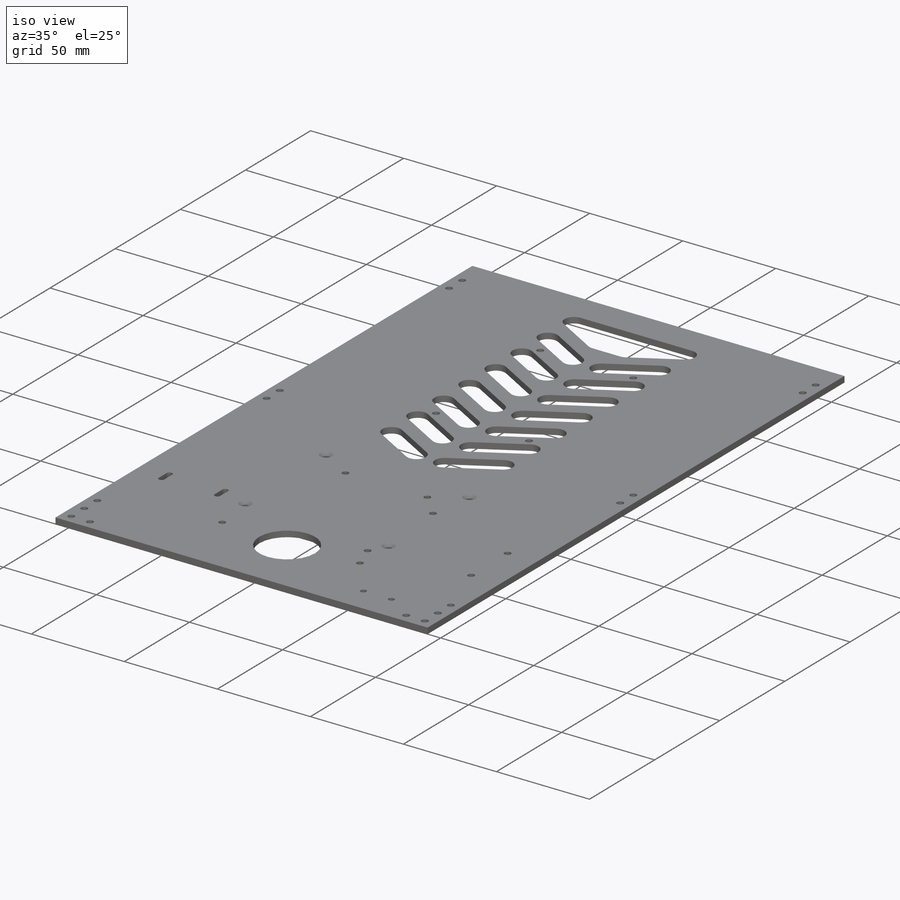
[diagram: iso view]
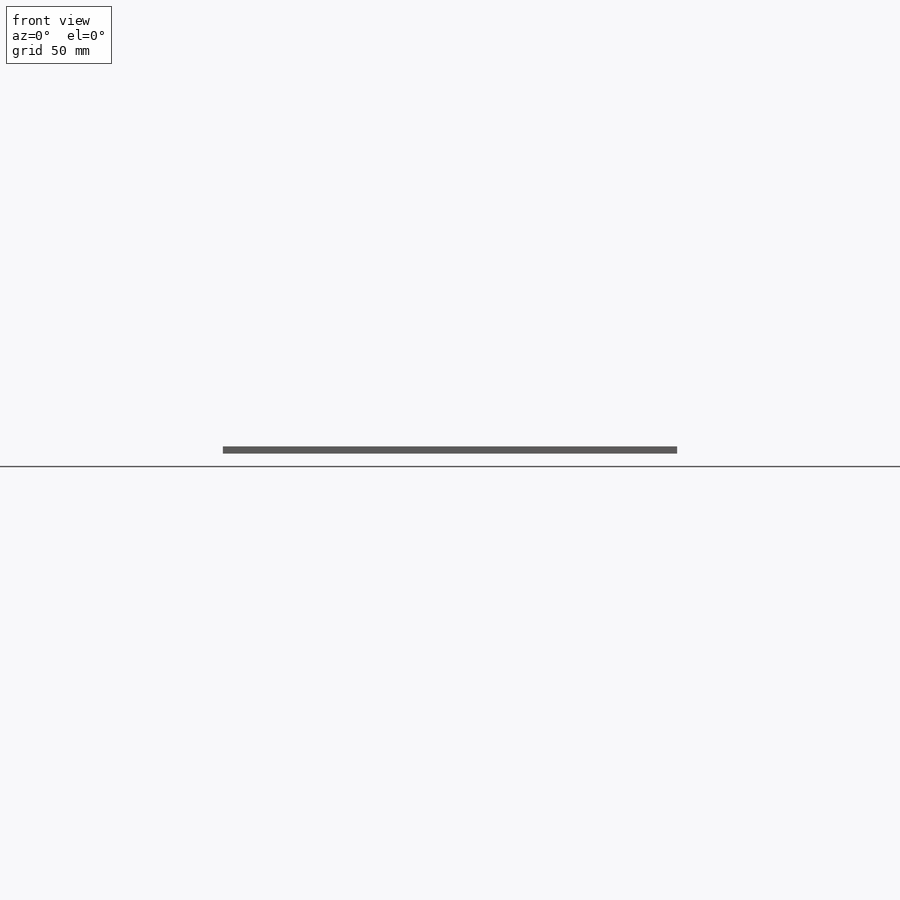
[diagram: front view]
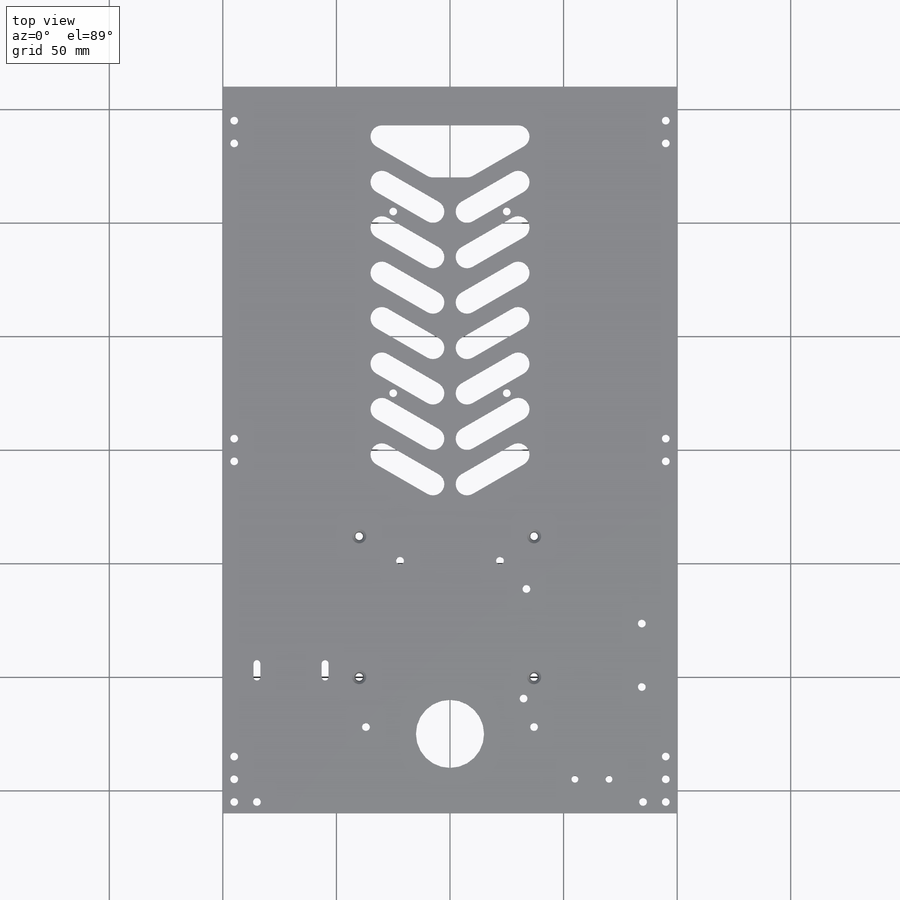
[diagram: top view]
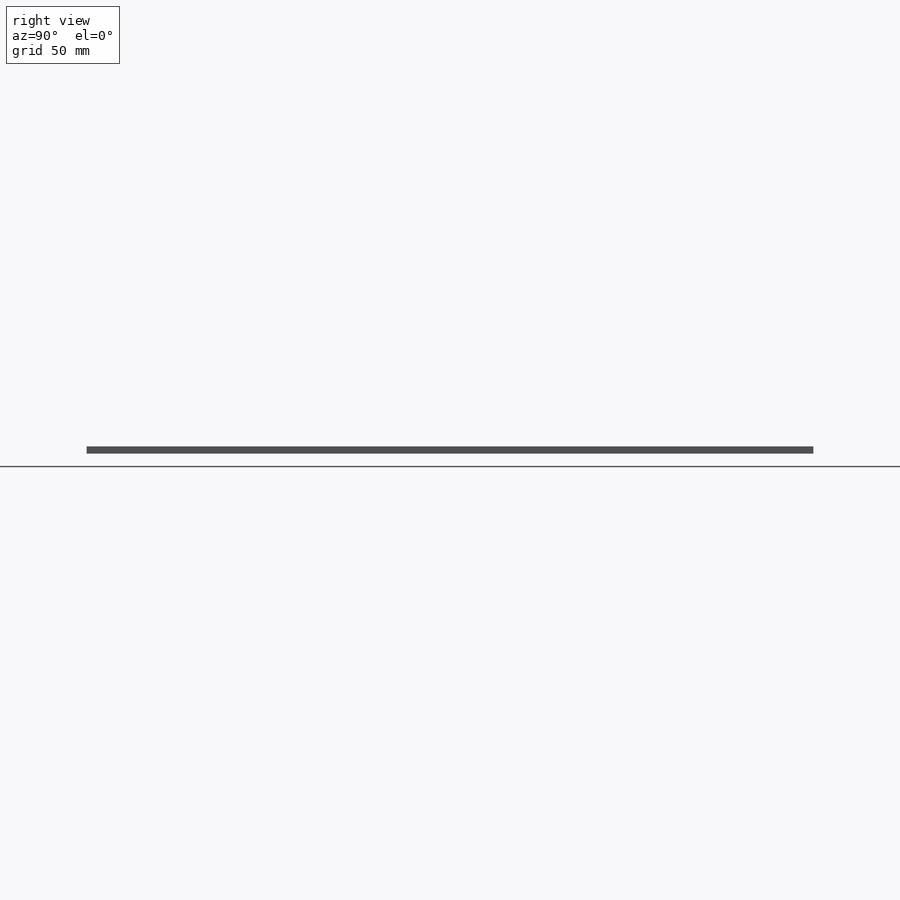
[diagram: right view]
SOLIDWORKS PART (.sldprt)
format: sldprt  version: not decoded by parser v0  size: 700,416 bytes
history: native  units: mm
features: sketch x13, hole x5, cut_extrude x2, material x1, extrude x1, mirror x1, pattern_linear x1 (+11 scaffold rows collapsed)
feature tree (35):
  scaffold x11  (default folders/planes/origin — collapsed)
  material  "Acrylic (Medium-high impact)"
  sketch  "Sketch1"  dims[D1=320.0mm D2=200.0mm]
  extrude  "Boss-Extrude1"  Depth=3.175mm
  hole  "CSK for M3 Flat Head Machine Screw1"  Diameter=3.4mm Depth=3.175mm
  sketch  "Sketch3"  dims[D1=10.0mm D2=10.0mm D3=10.0mm D4=5.0mm D5=5.0mm D6=15.0mm D7=10.0mm D8=10.0mm D9=150.0mm]
  sketch  "Sketch2"  dims[hole-wizard template sketch: 59 standard entries collapsed; hole parameters above]
  mirror  "Mirror1"
  hole  "CSK for M3 Flat Head Machine Screw2"  Diameter=3.4mm Depth=3.175mm
  sketch  "Sketch5"  dims[D1=77.0mm D2=62.0mm D3=60.0mm D4=60.0mm D5=50.0mm D6=80.0mm D7=55.0mm]
  sketch  "Sketch4"  dims[hole-wizard template sketch: 59 standard entries collapsed; hole parameters above]
  hole  "CSK for M3 Flat Head Machine Screw3"  Diameter=3.4mm Depth=3.175mm
  sketch  "Sketch7"  dims[c1.D1=60.0mm c1.D2=~53.581399mm c2.D1=60.0mm c2.D2=60.0mm c2.D3=77.0mm c2.D4=62.0mm]
  sketch  "Sketch6"  dims[hole-wizard template sketch: 59 standard entries collapsed; hole parameters above]
  sketch  "Sketch8"  dims[c1.D3=30.0mm c1.D1=30.0mm c1.D2=35.0mm c1.D4=~26.973824mm c2.D4=60.0deg c2.D5=7.5mm c2.D2=30.0mm c2.D3=175.0mm]
  cut_extrude  "Cut-Extrude1"  [1 undecoded]
  pattern_linear  "LPattern1"  Count1=8 Count2=1 Spacing1=20mm Spacing2=10mm
  sketch  "Sketch9"  dims[c1.D2=30.0mm c1.D3=30.0mm c1.D5=1.5mm c1.D10=3.0mm c1.D4=1.5mm c1.D1=60.0mm c2.D3=30.0mm c2.D4=60.0mm c2.D6=6.0mm c2.D7=12.0mm c2.D8=15.0mm c2.D9=15.0mm c2.D11=15.0mm c2.D12=30.0mm c3.D3=6.0mm c3.D5=15.0mm c3.D6=15.0mm c3.D7=35.0mm c3.D8=60.0mm]
  cut_extrude  "Cut-Extrude2"  [1 undecoded]
  hole  "CSK for M3 Flat Head Machine Screw4"  Diameter=3.4mm Depth=3.175mm
  sketch  "Sketch12"  dims[D1=13.97mm D2=2.54mm D3=7.62mm D4=66.04mm D5=66.04mm D6=35.56mm D7=15.24mm D8=50.8mm D9=53.34mm D10=68.58mm D11=13.0mm D12=48.0mm]
  sketch  "Sketch11"  dims[hole-wizard template sketch: 59 standard entries collapsed; hole parameters above]
  hole  "CSK for M3 Flat Head Machine Screw5"  Diameter=3.4mm Depth=3.175mm
  sketch  "Sketch14"  dims[D1=37.0mm D2=22.0mm D3=94.0mm D4=38.0mm]
  sketch  "Sketch13"  dims[hole-wizard template sketch: 59 standard entries collapsed; hole parameters above]
decode coverage: 20 of 23 modeling features carry decoded parameters
note: ~ marks probable driven/reference dimensions
note: 2 parameter values undecoded
summary: Diameter pulled from absorbed wizard sketch
note: suppression state not decoded; provenance and decode notes live in map.json
